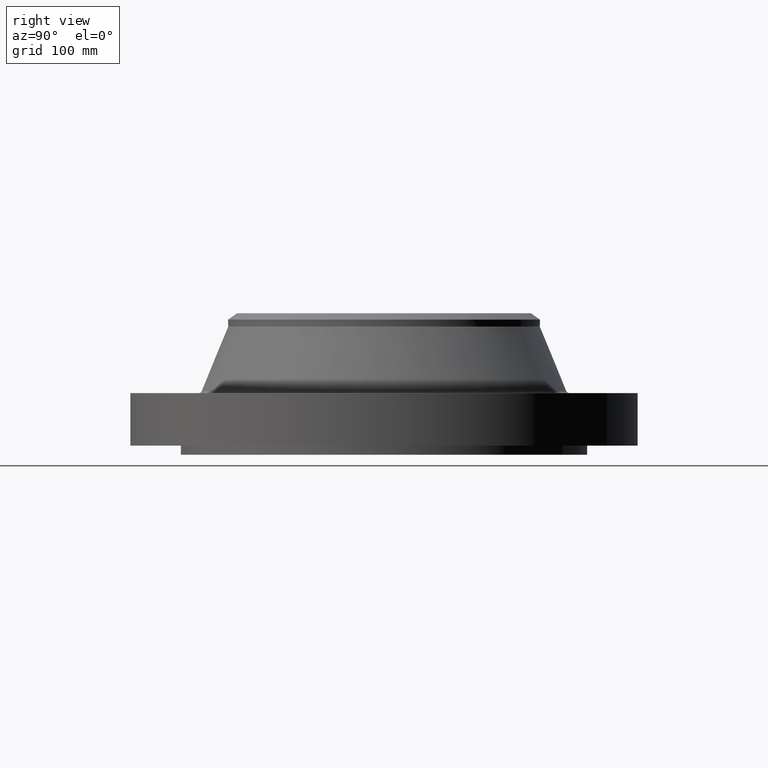
[diagram: clean part render]
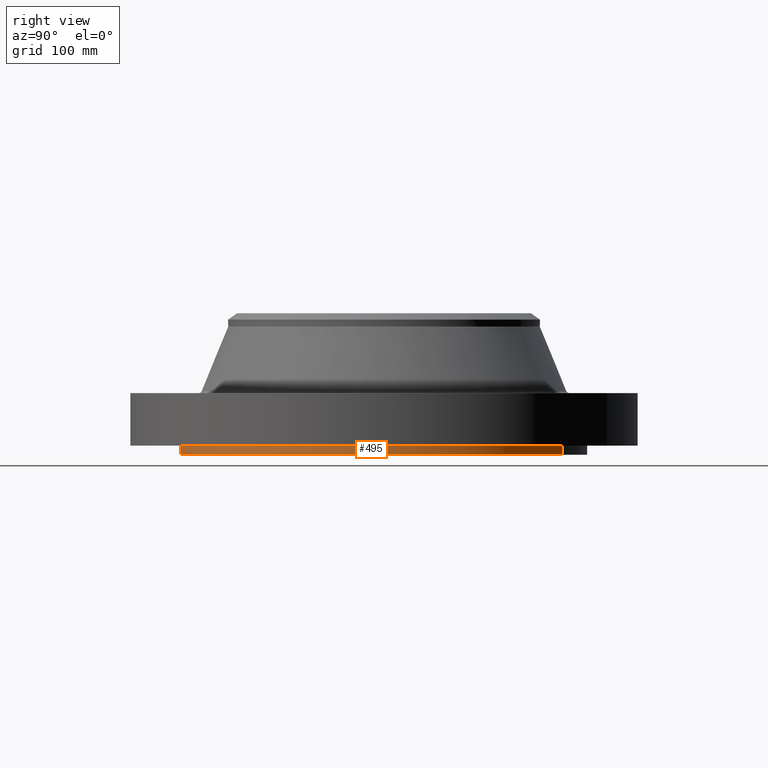
[diagram: same view with one face highlighted and labeled with its STEP entity id]
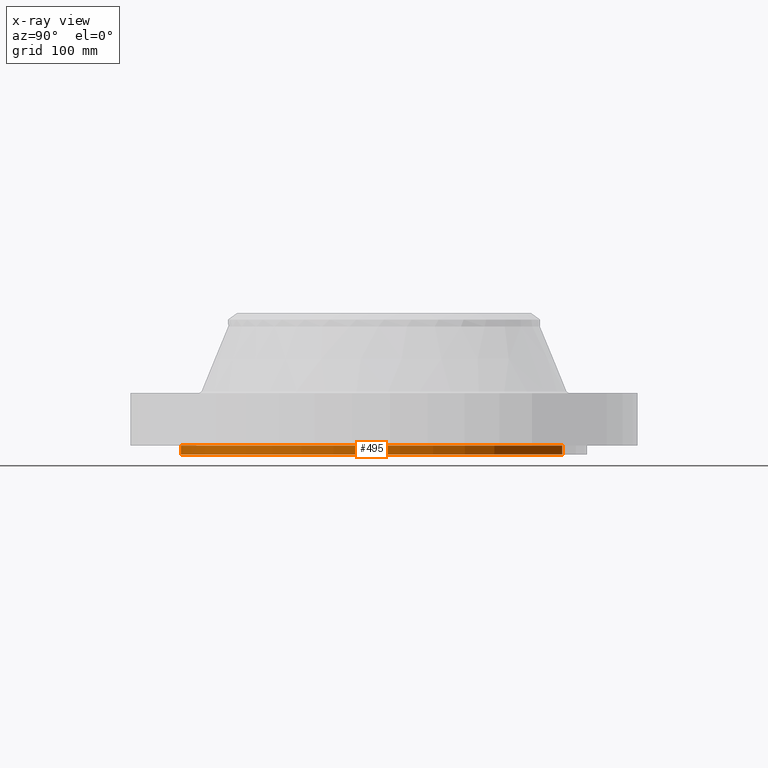
[diagram: x-ray of the same camera — body ghosted, the highlighted face saturated]
A machine part, right view. The second image highlights one B-rep face of the part: STEP entity #495.
The next image is the same camera in x-ray: the body ghosted, the highlighted face saturated — about 0% of this face is hidden behind the body in this view.
In plain terms, the highlighted cylindrical surface (partial cylindrical patch) has radius 177.8 mm, axis along (0, 0, -1).
Its self-contained STEP definition (entity closure, byte-faithful):
#442=AXIS2_PLACEMENT_3D('Cylinder Axis2P3D',#439,#440,#441) ;
#481=AXIS2_PLACEMENT_3D('Circle Axis2P3D',#479,#480,$) ;
#486=AXIS2_PLACEMENT_3D('Circle Axis2P3D',#484,#485,$) ;
#439=CARTESIAN_POINT('Axis2P3D Location',(0.,0.,2.12350000001)) ;
#448=CARTESIAN_POINT('Vertex',(-3.35597877024,-6.14307793326,-0.313000000001)) ;
#450=CARTESIAN_POINT('Vertex',(3.35597877024,6.14307793326,-0.313000000001)) ;
#453=CARTESIAN_POINT('Line Origine',(-3.35597877024,-6.14307793326,-0.156500000001)) ;
#457=CARTESIAN_POINT('Vertex',(-3.35597877024,-6.14307793326,8.39223703654E-016)) ;
#464=CARTESIAN_POINT('Vertex',(3.35597877024,6.14307793326,8.39223703654E-016)) ;
#467=CARTESIAN_POINT('Line Origine',(3.35597877024,6.14307793326,-0.156500000001)) ;
#479=CARTESIAN_POINT('Axis2P3D Location',(0.,0.,-0.313000000001)) ;
#484=CARTESIAN_POINT('Axis2P3D Location',(0.,0.,8.39223703654E-016)) ;
#440=DIRECTION('Axis2P3D Direction',(0.,0.,-0.0393700787402)) ;
#441=DIRECTION('Axis2P3D XDirection',(0.0188750212049,0.0345504945626,0.)) ;
#454=DIRECTION('Vector Direction',(0.,0.,-0.0393700787402)) ;
#468=DIRECTION('Vector Direction',(0.,0.,-0.0393700787402)) ;
#480=DIRECTION('Axis2P3D Direction',(0.,0.,-0.0393700787402)) ;
#485=DIRECTION('Axis2P3D Direction',(0.,0.,-0.0393700787402)) ;
#455=VECTOR('Line Direction',#454,0.0393700787402) ;
#469=VECTOR('Line Direction',#468,0.0393700787402) ;
#490=ORIENTED_EDGE('',*,*,#483,.F.) ;
#491=ORIENTED_EDGE('',*,*,#471,.T.) ;
#492=ORIENTED_EDGE('',*,*,#488,.T.) ;
#493=ORIENTED_EDGE('',*,*,#459,.F.) ;
#495=ADVANCED_FACE('PartBody',(#494),#443,.T.) ;
#482=CIRCLE('generated circle',#481,7.00000000003) ;
#487=CIRCLE('generated circle',#486,7.00000000003) ;
#443=CYLINDRICAL_SURFACE('generated cylinder',#442,7.00000000003) ;
#459=EDGE_CURVE('',#449,#458,#456,.F.) ;
#471=EDGE_CURVE('',#451,#465,#470,.F.) ;
#483=EDGE_CURVE('',#451,#449,#482,.T.) ;
#488=EDGE_CURVE('',#465,#458,#487,.T.) ;
#489=EDGE_LOOP('',(#490,#491,#492,#493)) ;
#494=FACE_OUTER_BOUND('',#489,.T.) ;
#456=LINE('Line',#453,#455) ;
#470=LINE('Line',#467,#469) ;
#449=VERTEX_POINT('',#448) ;
#451=VERTEX_POINT('',#450) ;
#458=VERTEX_POINT('',#457) ;
#465=VERTEX_POINT('',#464) ;